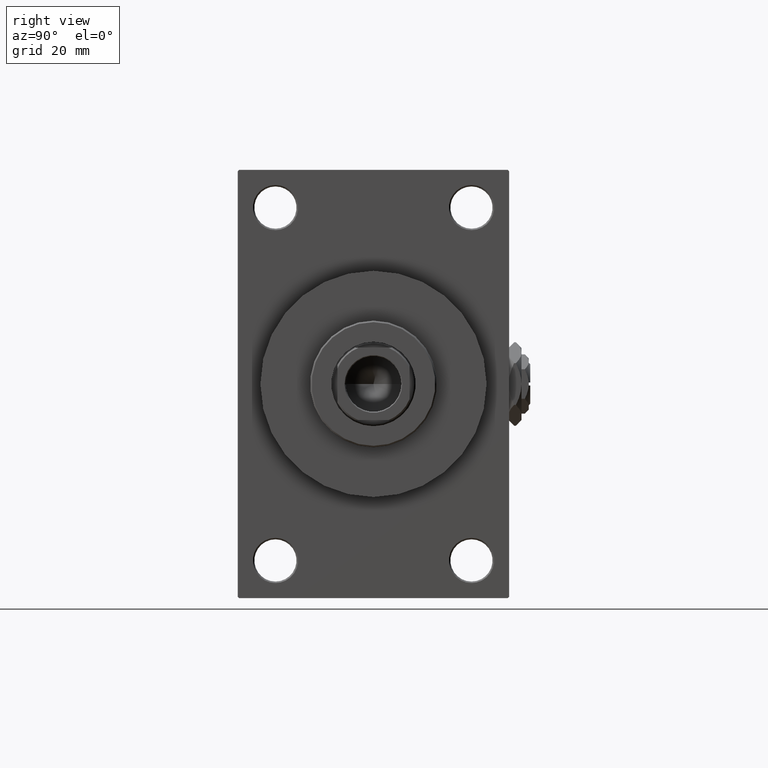
[diagram: clean part render]
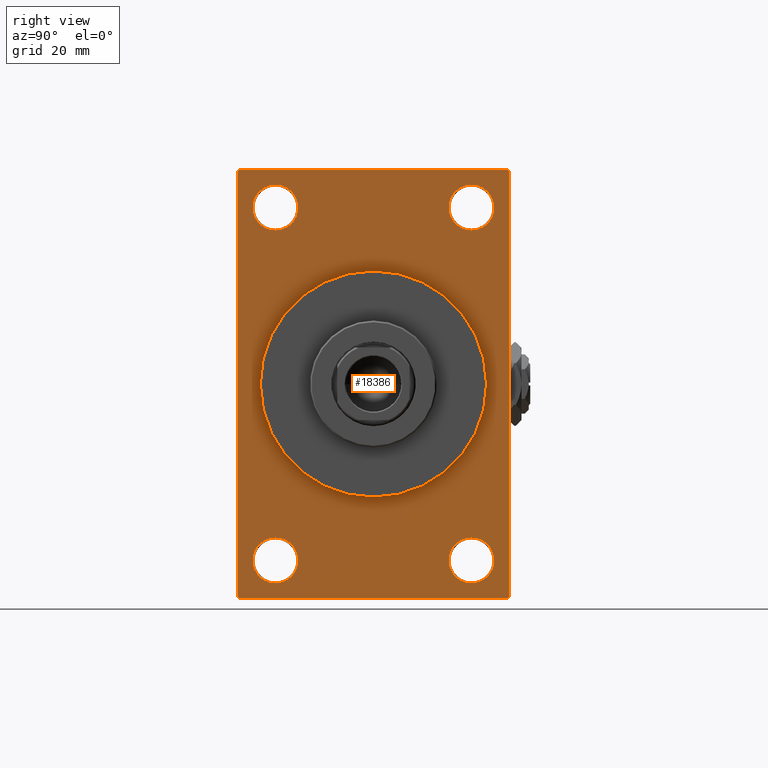
[diagram: same view with one face highlighted and labeled with its STEP entity id]
A machine part, right view. The second image highlights one B-rep face of the part: STEP entity #18386.
In plain terms, the highlighted planar face has unit normal (-1, 0, 0).
Its self-contained STEP definition (entity closure, byte-faithful):
#475 = EDGE_CURVE ( 'NONE', #17752, #39649, #48960, .T. ) ;
#696 = EDGE_CURVE ( 'NONE', #22702, #38134, #37837, .T. ) ;
#797 = FACE_BOUND ( 'NONE', #5483, .T. ) ;
#1031 = DIRECTION ( 'NONE',  ( -0.000000000000000000, 0.000000000000000000, 1.000000000000000000 ) ) ;
#2069 = CARTESIAN_POINT ( 'NONE',  ( 128.0000000000000000, 32.50000000000000711, -58.50000000000000000 ) ) ;
#2489 = EDGE_CURVE ( 'NONE', #44272, #12751, #27275, .T. ) ;
#3481 = DIRECTION ( 'NONE',  ( -1.000000000000000000, 0.000000000000000000, -0.000000000000000000 ) ) ;
#3845 = VERTEX_POINT ( 'NONE', #14631 ) ;
#3862 = VECTOR ( 'NONE', #43000, 1000.000000000000000 ) ;
#4188 = CARTESIAN_POINT ( 'NONE',  ( 128.0000000000000000, 0.000000000000000000, 0.000000000000000000 ) ) ;
#4465 = EDGE_LOOP ( 'NONE', ( #30756, #10499, #44401, #19786, #39489, #13011, #47171, #26381 ) ) ;
#4540 = VECTOR ( 'NONE', #15898, 1000.000000000000000 ) ;
#4676 = VERTEX_POINT ( 'NONE', #44083 ) ;
#4718 = EDGE_CURVE ( 'NONE', #36571, #20506, #18905, .T. ) ;
#5483 = EDGE_LOOP ( 'NONE', ( #15984, #28086 ) ) ;
#5582 = ORIENTED_EDGE ( 'NONE', *, *, #19406, .T. ) ;
#5723 = EDGE_CURVE ( 'NONE', #20613, #22702, #19908, .T. ) ;
#5931 = VECTOR ( 'NONE', #45313, 1000.000000000000000 ) ;
#6064 = ORIENTED_EDGE ( 'NONE', *, *, #42610, .T. ) ;
#6115 = AXIS2_PLACEMENT_3D ( 'NONE', #37257, #49207, #14332 ) ;
#6657 = DIRECTION ( 'NONE',  ( -0.000000000000000000, 0.7071067811865574537, 0.7071067811865376918 ) ) ;
#7034 = CIRCLE ( 'NONE', #14969, 7.499999999999909406 ) ;
#7241 = EDGE_CURVE ( 'NONE', #20506, #36571, #23747, .T. ) ;
#7478 = DIRECTION ( 'NONE',  ( 0.000000000000000000, -0.7071067811865474617, 0.7071067811865474617 ) ) ;
#7511 = FACE_BOUND ( 'NONE', #20664, .T. ) ;
#7816 = EDGE_CURVE ( 'NONE', #38066, #40730, #8803, .T. ) ;
#8528 = ORIENTED_EDGE ( 'NONE', *, *, #4718, .F. ) ;
#8554 = DIRECTION ( 'NONE',  ( 0.000000000000000000, 0.7071067811865771047, -0.7071067811865180408 ) ) ;
#8803 = LINE ( 'NONE', #42720, #40468 ) ;
#9159 = CARTESIAN_POINT ( 'NONE',  ( 128.0000000000000000, -44.99999999999997158, 70.50000000000000000 ) ) ;
#9561 = DIRECTION ( 'NONE',  ( -1.000000000000000000, 0.000000000000000000, -0.000000000000000000 ) ) ;
#9801 = DIRECTION ( 'NONE',  ( 0.000000000000000000, 0.000000000000000000, 1.000000000000000000 ) ) ;
#9957 = VECTOR ( 'NONE', #7478, 1000.000000000000114 ) ;
#10109 = CIRCLE ( 'NONE', #6115, 7.499999999999909406 ) ;
#10404 = CARTESIAN_POINT ( 'NONE',  ( 128.0000000000000000, 45.00000000000001421, -70.50000000000001421 ) ) ;
#10499 = ORIENTED_EDGE ( 'NONE', *, *, #7816, .T. ) ;
#10607 = VECTOR ( 'NONE', #6657, 999.9999999999998863 ) ;
#12217 = EDGE_CURVE ( 'NONE', #38134, #38066, #15581, .T. ) ;
#12245 = FACE_BOUND ( 'NONE', #30099, .T. ) ;
#12303 = CARTESIAN_POINT ( 'NONE',  ( 128.0000000000000000, 32.50000000000000711, -65.99999999999997158 ) ) ;
#12357 = CARTESIAN_POINT ( 'NONE',  ( 128.0000000000000000, -32.50000000000000000, -51.00000000000000711 ) ) ;
#12751 = VERTEX_POINT ( 'NONE', #39433 ) ;
#12920 = CIRCLE ( 'NONE', #32842, 7.499999999999909406 ) ;
#13011 = ORIENTED_EDGE ( 'NONE', *, *, #35102, .T. ) ;
#13030 = ORIENTED_EDGE ( 'NONE', *, *, #24051, .T. ) ;
#13949 = CARTESIAN_POINT ( 'NONE',  ( 128.0000000000000000, 45.00000000000001421, -70.99999999999998579 ) ) ;
#14254 = CARTESIAN_POINT ( 'NONE',  ( 128.0000000000000000, -32.50000000000000000, -58.49999999999999289 ) ) ;
#14332 = DIRECTION ( 'NONE',  ( 0.000000000000000000, 0.000000000000000000, 1.000000000000000000 ) ) ;
#14631 = CARTESIAN_POINT ( 'NONE',  ( 128.0000000000000000, -32.50000000000000000, 65.99999999999991473 ) ) ;
#14969 = AXIS2_PLACEMENT_3D ( 'NONE', #29237, #33223, #21016 ) ;
#15458 = CARTESIAN_POINT ( 'NONE',  ( 128.0000000000000000, -44.49999999999994316, -71.00000000000000000 ) ) ;
#15469 = CARTESIAN_POINT ( 'NONE',  ( 128.0000000000000000, 44.50000000000002132, 71.00000000000000000 ) ) ;
#15581 = LINE ( 'NONE', #20083, #3862 ) ;
#15898 = DIRECTION ( 'NONE',  ( 0.000000000000000000, -1.000000000000000000, -1.541976423090495387E-16 ) ) ;
#15984 = ORIENTED_EDGE ( 'NONE', *, *, #37888, .T. ) ;
#16377 = VECTOR ( 'NONE', #23529, 1000.000000000000000 ) ;
#16421 = DIRECTION ( 'NONE',  ( 0.000000000000000000, 0.000000000000000000, 1.000000000000000000 ) ) ;
#17672 = DIRECTION ( 'NONE',  ( 0.000000000000000000, 0.000000000000000000, -1.000000000000000000 ) ) ;
#17752 = VERTEX_POINT ( 'NONE', #12357 ) ;
#18104 = VERTEX_POINT ( 'NONE', #12303 ) ;
#18386 = ADVANCED_FACE ( 'NONE', ( #34942, #797, #12245, #7511, #35190, #27472 ), #19508, .F. ) ;
#18433 = CIRCLE ( 'NONE', #47890, 7.499999999999978684 ) ;
#18860 = EDGE_CURVE ( 'NONE', #35858, #18104, #18433, .T. ) ;
#18905 = CIRCLE ( 'NONE', #49129, 37.50000000000000711 ) ;
#19406 = EDGE_CURVE ( 'NONE', #44509, #34863, #23243, .T. ) ;
#19508 = PLANE ( 'NONE',  #47099 ) ;
#19786 = ORIENTED_EDGE ( 'NONE', *, *, #29953, .T. ) ;
#19908 = LINE ( 'NONE', #35336, #4540 ) ;
#20083 = CARTESIAN_POINT ( 'NONE',  ( 128.0000000000000000, -44.99999999999997158, 70.99999999999998579 ) ) ;
#20506 = VERTEX_POINT ( 'NONE', #42036 ) ;
#20613 = VERTEX_POINT ( 'NONE', #37254 ) ;
#20664 = EDGE_LOOP ( 'NONE', ( #5582, #13030 ) ) ;
#21016 = DIRECTION ( 'NONE',  ( 0.000000000000000000, 0.000000000000000000, 1.000000000000000000 ) ) ;
#21422 = CARTESIAN_POINT ( 'NONE',  ( 128.0000000000000000, 0.000000000000000000, 0.000000000000000000 ) ) ;
#21450 = DIRECTION ( 'NONE',  ( 0.000000000000000000, -1.000000000000000000, -1.541976423090495633E-16 ) ) ;
#21504 = EDGE_LOOP ( 'NONE', ( #6064, #47882 ) ) ;
#21768 = CARTESIAN_POINT ( 'NONE',  ( 128.0000000000000000, -32.50000000000000000, -65.99999999999995737 ) ) ;
#22406 = DIRECTION ( 'NONE',  ( 0.000000000000000000, 0.000000000000000000, 1.000000000000000000 ) ) ;
#22649 = DIRECTION ( 'NONE',  ( -1.000000000000000000, 0.000000000000000000, -0.000000000000000000 ) ) ;
#22682 = CARTESIAN_POINT ( 'NONE',  ( 128.0000000000000000, 44.50000000000004263, -70.99999999999998579 ) ) ;
#22702 = VERTEX_POINT ( 'NONE', #46131 ) ;
#23243 = CIRCLE ( 'NONE', #30426, 7.499999999999909406 ) ;
#23529 = DIRECTION ( 'NONE',  ( 0.000000000000000000, -4.886545002751570165E-17, -1.000000000000000000 ) ) ;
#23731 = DIRECTION ( 'NONE',  ( -1.000000000000000000, 0.000000000000000000, -0.000000000000000000 ) ) ;
#23747 = CIRCLE ( 'NONE', #44411, 37.50000000000000711 ) ;
#24051 = EDGE_CURVE ( 'NONE', #34863, #44509, #12920, .T. ) ;
#24277 = AXIS2_PLACEMENT_3D ( 'NONE', #14254, #30443, #30195 ) ;
#25711 = DIRECTION ( 'NONE',  ( 0.000000000000000000, 0.000000000000000000, 1.000000000000000000 ) ) ;
#26153 = CARTESIAN_POINT ( 'NONE',  ( 128.0000000000000000, -32.50000000000000000, -58.49999999999999289 ) ) ;
#26243 = DIRECTION ( 'NONE',  ( 0.000000000000000000, 0.000000000000000000, 1.000000000000000000 ) ) ;
#26381 = ORIENTED_EDGE ( 'NONE', *, *, #696, .T. ) ;
#26784 = CARTESIAN_POINT ( 'NONE',  ( 128.0000000000000000, 45.00000000000002132, 71.00000000000000000 ) ) ;
#27275 = LINE ( 'NONE', #26784, #16377 ) ;
#27428 = EDGE_CURVE ( 'NONE', #18104, #35858, #33709, .T. ) ;
#27472 = FACE_OUTER_BOUND ( 'NONE', #4465, .T. ) ;
#27629 = DIRECTION ( 'NONE',  ( 1.000000000000000000, 0.000000000000000000, 0.000000000000000000 ) ) ;
#28086 = ORIENTED_EDGE ( 'NONE', *, *, #475, .T. ) ;
#28128 = CARTESIAN_POINT ( 'NONE',  ( 128.0000000000000000, 32.50000000000000711, 58.50000000000000711 ) ) ;
#28676 = LINE ( 'NONE', #13949, #32184 ) ;
#28815 = CARTESIAN_POINT ( 'NONE',  ( 128.0000000000000000, 32.50000000000000711, -58.50000000000000000 ) ) ;
#29194 = CARTESIAN_POINT ( 'NONE',  ( 128.0000000000000000, 32.50000000000000711, 58.50000000000000711 ) ) ;
#29237 = CARTESIAN_POINT ( 'NONE',  ( 128.0000000000000000, -32.50000000000000000, 58.50000000000000711 ) ) ;
#29918 = CARTESIAN_POINT ( 'NONE',  ( 128.0000000000000000, 32.50000000000000711, 51.00000000000009948 ) ) ;
#29953 = EDGE_CURVE ( 'NONE', #34042, #12751, #45270, .T. ) ;
#30099 = EDGE_LOOP ( 'NONE', ( #31252, #41945 ) ) ;
#30195 = DIRECTION ( 'NONE',  ( 0.000000000000000000, 0.000000000000000000, 1.000000000000000000 ) ) ;
#30426 = AXIS2_PLACEMENT_3D ( 'NONE', #29194, #3481, #25711 ) ;
#30443 = DIRECTION ( 'NONE',  ( -1.000000000000000000, 0.000000000000000000, -0.000000000000000000 ) ) ;
#30674 = EDGE_LOOP ( 'NONE', ( #36332, #8528 ) ) ;
#30756 = ORIENTED_EDGE ( 'NONE', *, *, #12217, .T. ) ;
#31252 = ORIENTED_EDGE ( 'NONE', *, *, #27428, .T. ) ;
#31927 = EDGE_CURVE ( 'NONE', #34042, #40730, #28676, .T. ) ;
#32184 = VECTOR ( 'NONE', #21450, 1000.000000000000000 ) ;
#32842 = AXIS2_PLACEMENT_3D ( 'NONE', #28128, #43326, #16421 ) ;
#33183 = AXIS2_PLACEMENT_3D ( 'NONE', #26153, #22649, #22406 ) ;
#33223 = DIRECTION ( 'NONE',  ( -1.000000000000000000, 0.000000000000000000, -0.000000000000000000 ) ) ;
#33456 = CARTESIAN_POINT ( 'NONE',  ( 128.0000000000000000, 4.592425496802575156E-15, -37.50000000000000711 ) ) ;
#33484 = CARTESIAN_POINT ( 'NONE',  ( 128.0000000000000000, 45.00000000000002132, 70.50000000000000000 ) ) ;
#33709 = CIRCLE ( 'NONE', #46439, 7.499999999999978684 ) ;
#34042 = VERTEX_POINT ( 'NONE', #22682 ) ;
#34863 = VERTEX_POINT ( 'NONE', #38215 ) ;
#34942 = FACE_BOUND ( 'NONE', #21504, .T. ) ;
#34976 = CARTESIAN_POINT ( 'NONE',  ( 128.0000000000000000, 32.50000000000000711, -51.00000000000001421 ) ) ;
#35102 = EDGE_CURVE ( 'NONE', #44272, #20613, #44885, .T. ) ;
#35190 = FACE_BOUND ( 'NONE', #30674, .T. ) ;
#35336 = CARTESIAN_POINT ( 'NONE',  ( 128.0000000000000000, 45.00000000000002132, 71.00000000000000000 ) ) ;
#35350 = CARTESIAN_POINT ( 'NONE',  ( 128.0000000000000000, -44.99999999999997158, -70.50000000000002842 ) ) ;
#35858 = VERTEX_POINT ( 'NONE', #34976 ) ;
#36332 = ORIENTED_EDGE ( 'NONE', *, *, #7241, .F. ) ;
#36571 = VERTEX_POINT ( 'NONE', #33456 ) ;
#36613 = DIRECTION ( 'NONE',  ( 1.000000000000000000, 0.000000000000000000, 0.000000000000000000 ) ) ;
#37254 = CARTESIAN_POINT ( 'NONE',  ( 128.0000000000000000, 44.50000000000002132, 71.00000000000000000 ) ) ;
#37257 = CARTESIAN_POINT ( 'NONE',  ( 128.0000000000000000, -32.50000000000000000, 58.50000000000000711 ) ) ;
#37837 = LINE ( 'NONE', #41586, #5931 ) ;
#37888 = EDGE_CURVE ( 'NONE', #39649, #17752, #46679, .T. ) ;
#38066 = VERTEX_POINT ( 'NONE', #35350 ) ;
#38134 = VERTEX_POINT ( 'NONE', #9159 ) ;
#38215 = CARTESIAN_POINT ( 'NONE',  ( 128.0000000000000000, 32.50000000000000711, 65.99999999999991473 ) ) ;
#39343 = EDGE_CURVE ( 'NONE', #3845, #4676, #10109, .T. ) ;
#39433 = CARTESIAN_POINT ( 'NONE',  ( 128.0000000000000000, 45.00000000000001421, -70.50000000000001421 ) ) ;
#39489 = ORIENTED_EDGE ( 'NONE', *, *, #2489, .F. ) ;
#39649 = VERTEX_POINT ( 'NONE', #21768 ) ;
#40468 = VECTOR ( 'NONE', #8554, 999.9999999999998863 ) ;
#40730 = VERTEX_POINT ( 'NONE', #15458 ) ;
#41586 = CARTESIAN_POINT ( 'NONE',  ( 128.0000000000000000, -44.99999999999997158, 70.50000000000000000 ) ) ;
#41945 = ORIENTED_EDGE ( 'NONE', *, *, #18860, .T. ) ;
#42036 = CARTESIAN_POINT ( 'NONE',  ( 128.0000000000000000, 0.000000000000000000, 37.50000000000000711 ) ) ;
#42610 = EDGE_CURVE ( 'NONE', #4676, #3845, #7034, .T. ) ;
#42667 = CARTESIAN_POINT ( 'NONE',  ( 128.0000000000000000, 0.000000000000000000, 0.000000000000000000 ) ) ;
#42720 = CARTESIAN_POINT ( 'NONE',  ( 128.0000000000000000, -44.49999999999997158, -71.00000000000000000 ) ) ;
#42835 = DIRECTION ( 'NONE',  ( 0.000000000000000000, 0.000000000000000000, -1.000000000000000000 ) ) ;
#43000 = DIRECTION ( 'NONE',  ( 0.000000000000000000, 0.000000000000000000, -1.000000000000000000 ) ) ;
#43326 = DIRECTION ( 'NONE',  ( -1.000000000000000000, 0.000000000000000000, -0.000000000000000000 ) ) ;
#44083 = CARTESIAN_POINT ( 'NONE',  ( 128.0000000000000000, -32.50000000000000000, 51.00000000000009948 ) ) ;
#44272 = VERTEX_POINT ( 'NONE', #33484 ) ;
#44401 = ORIENTED_EDGE ( 'NONE', *, *, #31927, .F. ) ;
#44411 = AXIS2_PLACEMENT_3D ( 'NONE', #4188, #27629, #42835 ) ;
#44509 = VERTEX_POINT ( 'NONE', #29918 ) ;
#44885 = LINE ( 'NONE', #15469, #9957 ) ;
#45156 = DIRECTION ( 'NONE',  ( -1.000000000000000000, 0.000000000000000000, -0.000000000000000000 ) ) ;
#45270 = LINE ( 'NONE', #10404, #10607 ) ;
#45313 = DIRECTION ( 'NONE',  ( -0.000000000000000000, -0.7071067811865622277, -0.7071067811865328068 ) ) ;
#46131 = CARTESIAN_POINT ( 'NONE',  ( 128.0000000000000000, -44.49999999999995026, 70.99999999999998579 ) ) ;
#46439 = AXIS2_PLACEMENT_3D ( 'NONE', #28815, #45156, #26243 ) ;
#46679 = CIRCLE ( 'NONE', #33183, 7.499999999999985789 ) ;
#47099 = AXIS2_PLACEMENT_3D ( 'NONE', #42667, #23731, #1031 ) ;
#47171 = ORIENTED_EDGE ( 'NONE', *, *, #5723, .T. ) ;
#47882 = ORIENTED_EDGE ( 'NONE', *, *, #39343, .T. ) ;
#47890 = AXIS2_PLACEMENT_3D ( 'NONE', #2069, #9561, #9801 ) ;
#48960 = CIRCLE ( 'NONE', #24277, 7.499999999999985789 ) ;
#49129 = AXIS2_PLACEMENT_3D ( 'NONE', #21422, #36613, #17672 ) ;
#49207 = DIRECTION ( 'NONE',  ( -1.000000000000000000, 0.000000000000000000, -0.000000000000000000 ) ) ;